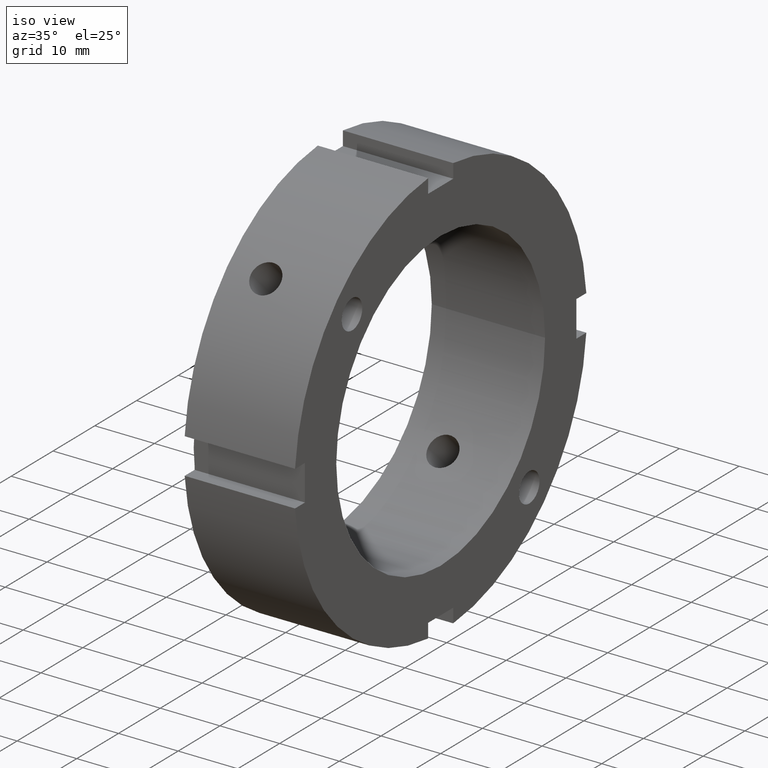
[diagram: clean part render]
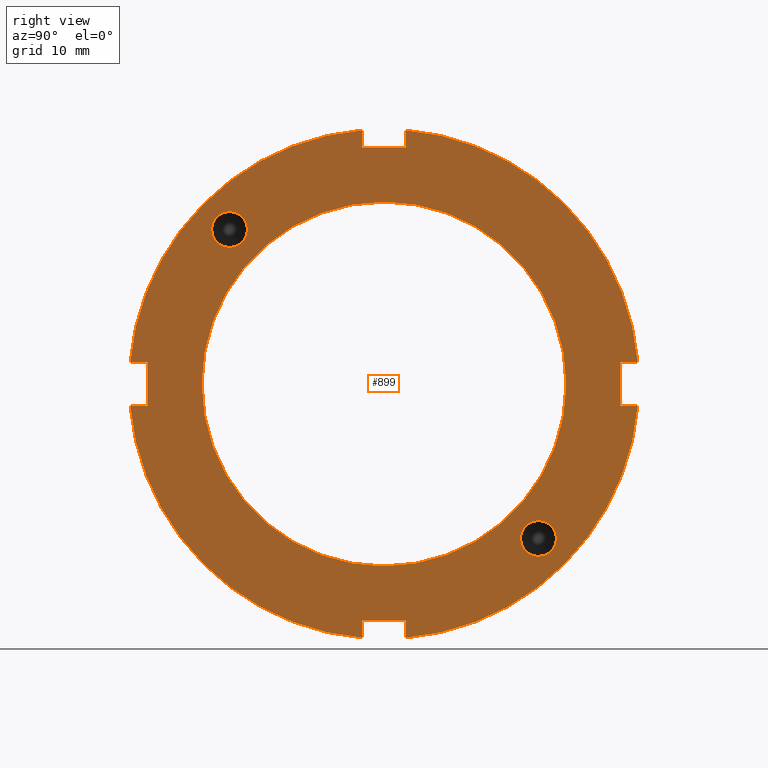
[diagram: tour spotlight — one face highlighted and labeled with its STEP entity id]
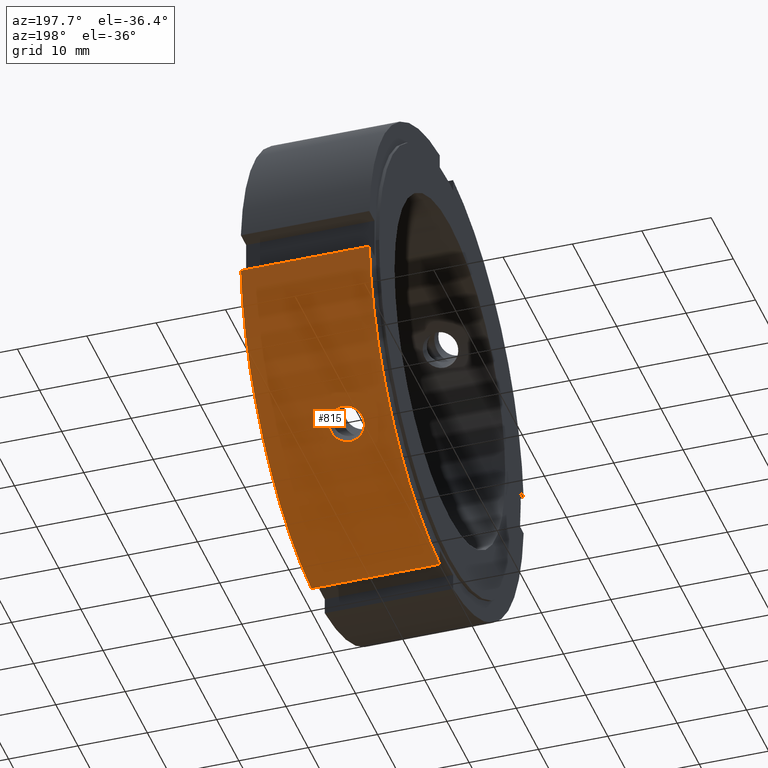
[diagram: tour spotlight — one face highlighted and labeled with its STEP entity id]
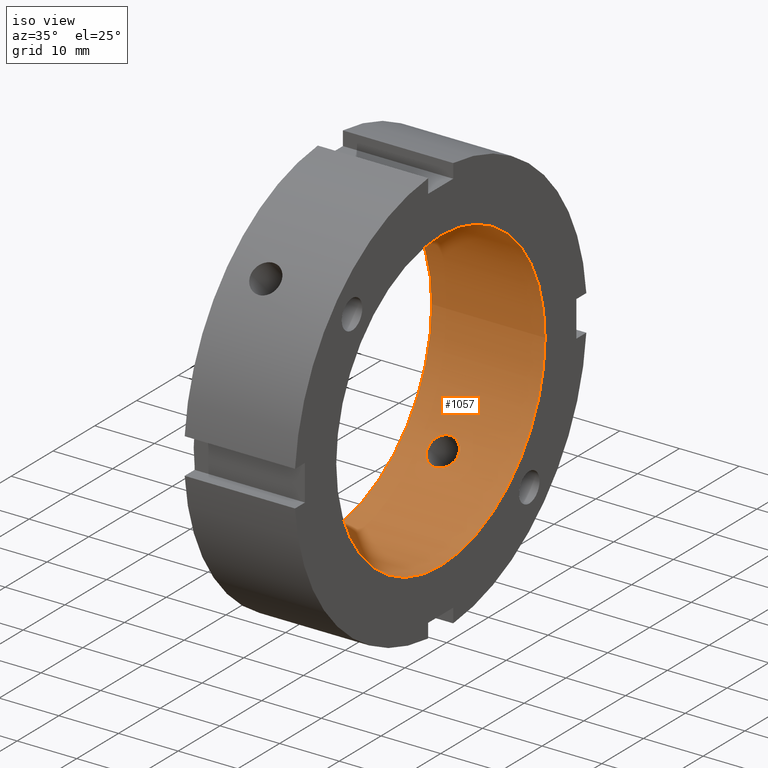
[diagram: tour spotlight — one face highlighted and labeled with its STEP entity id]
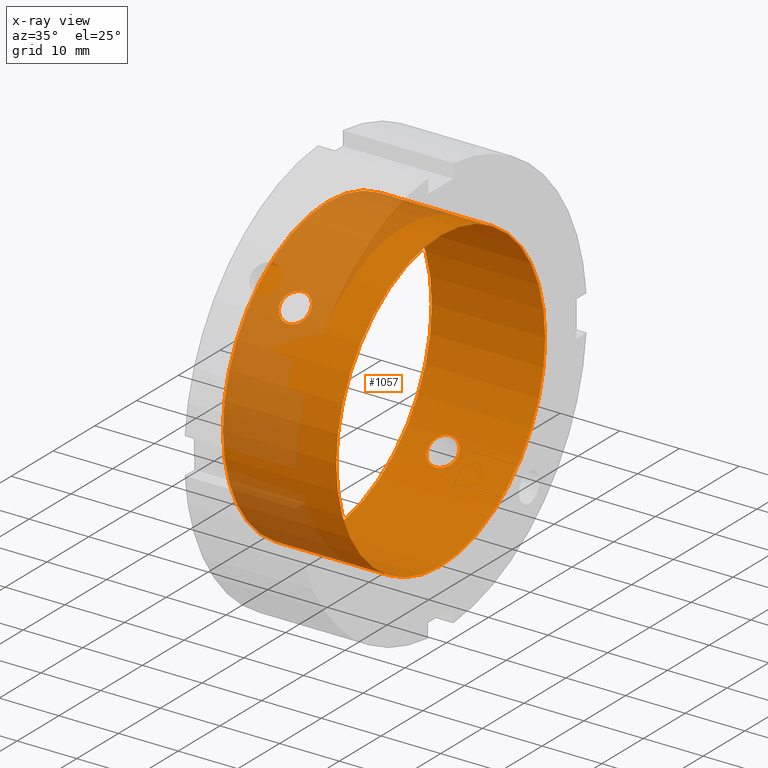
[diagram: x-ray of the same camera — body ghosted, this tour face saturated]
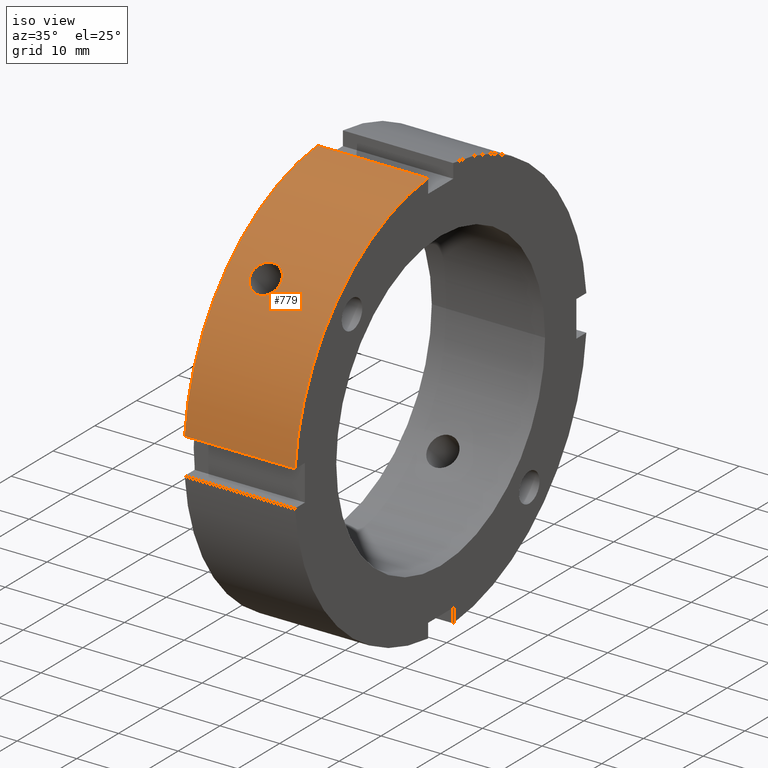
[diagram: tour spotlight — one face highlighted and labeled with its STEP entity id]
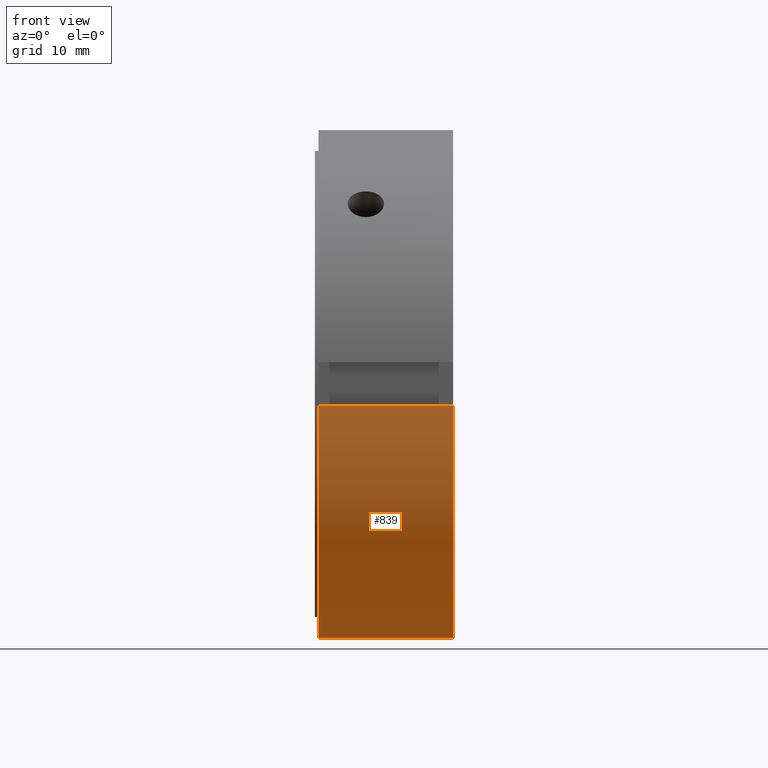
[diagram: tour spotlight — one face highlighted and labeled with its STEP entity id]
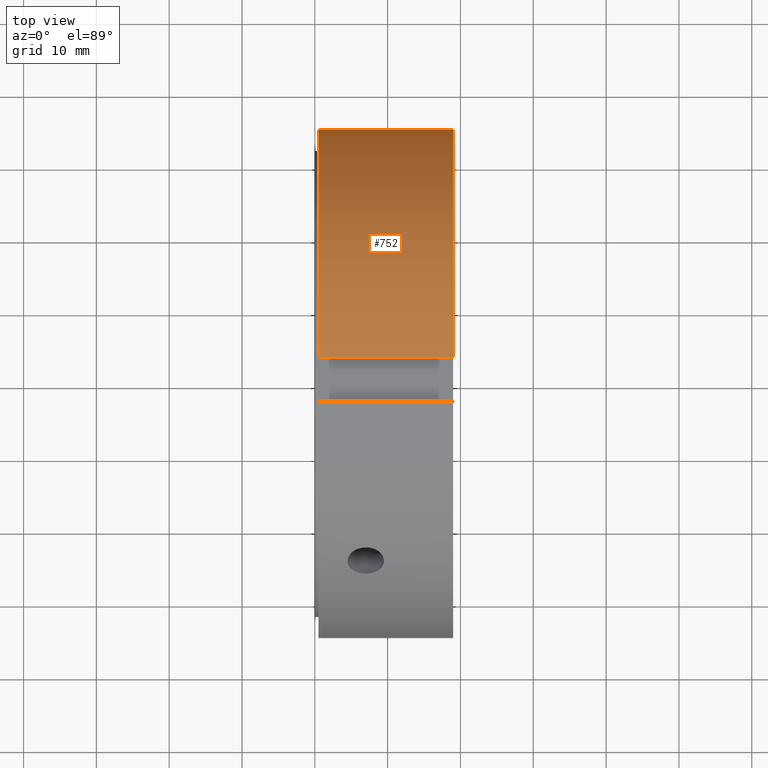
[diagram: tour spotlight — one face highlighted and labeled with its STEP entity id]
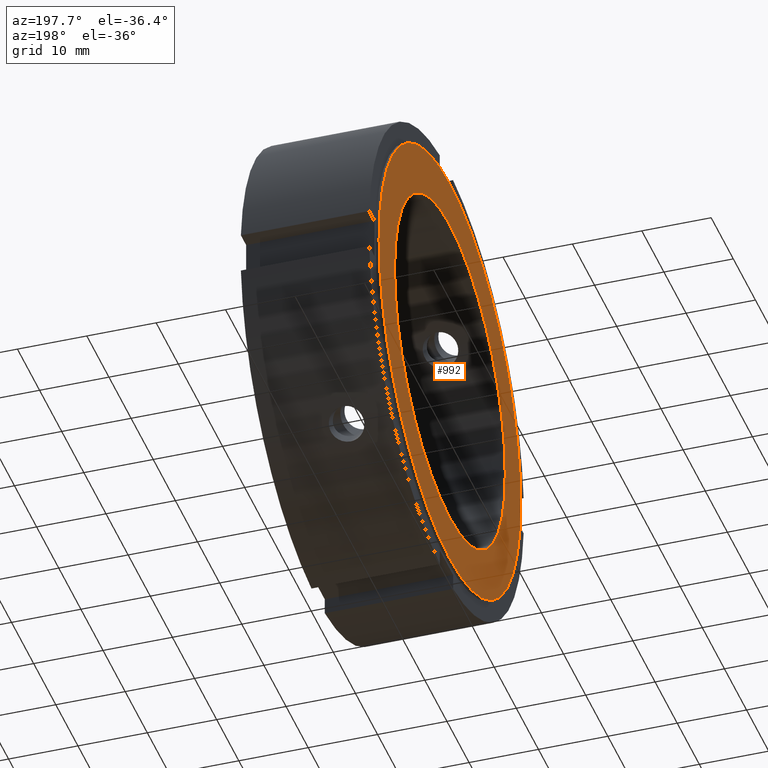
[diagram: tour spotlight — one face highlighted and labeled with its STEP entity id]
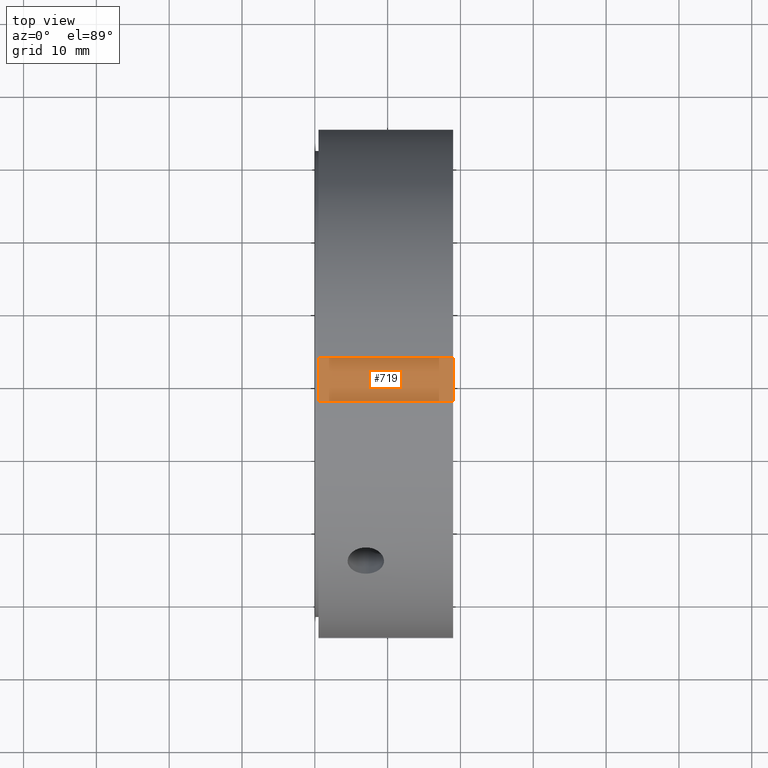
[diagram: tour spotlight — one face highlighted and labeled with its STEP entity id]
A machine part: a face-by-face anatomy tour. The part has 25 B-rep faces; the first image is the clean iso view, then the 8 largest visible faces are spotlighted one at a time (largest first), each with its STEP entity span.

Face 1 — right view, entity #899. In plain terms, the highlighted planar face has unit normal (1, 0, 0).
Definition (entity closure, byte-faithful):
#73=CARTESIAN_POINT('',(18.999999999999989,-23.67170343559642,21.213203435596434));
#74=VERTEX_POINT('',#73);
#75=CARTESIAN_POINT('',(18.999999999999989,-21.213203435596419,21.213203435596434));
#76=DIRECTION('',(-1.0,0.0,0.0));
#77=DIRECTION('',(0.0,-1.0,0.0));
#78=AXIS2_PLACEMENT_3D('',#75,#76,#77);
#79=CIRCLE('',#78,2.4585);
#80=EDGE_CURVE('',#74,#74,#79,.T.);
#311=CARTESIAN_POINT('',(18.999999999999989,21.213203435596427,-23.671703435596424));
#312=VERTEX_POINT('',#311);
#313=CARTESIAN_POINT('',(18.999999999999989,21.213203435596427,-21.213203435596423));
#314=DIRECTION('',(-1.0,0.0,0.0));
#315=DIRECTION('',(0.0,0.0,-1.0));
#316=AXIS2_PLACEMENT_3D('',#313,#314,#315);
#317=CIRCLE('',#316,2.4585);
#318=EDGE_CURVE('',#312,#312,#317,.T.);
#429=CARTESIAN_POINT('',(18.999999999999989,-3.000000000000004,-32.5));
#430=VERTEX_POINT('',#429);
#437=CARTESIAN_POINT('',(18.999999999999989,-3.000000000000005,-34.871191548325385));
#438=VERTEX_POINT('',#437);
#439=CARTESIAN_POINT('',(18.999999999999989,-3.000000000000004,-34.871191548325385));
#440=DIRECTION('',(0.0,0.0,1.0));
#441=VECTOR('',#440,2.371191548325385);
#442=LINE('',#439,#441);
#443=EDGE_CURVE('',#438,#430,#442,.T.);
#469=CARTESIAN_POINT('',(18.999999999999989,2.999999999999993,-34.871191548325385));
#470=VERTEX_POINT('',#469);
#477=CARTESIAN_POINT('',(18.999999999999989,2.999999999999992,-32.5));
#478=VERTEX_POINT('',#477);
#479=CARTESIAN_POINT('',(18.999999999999989,2.999999999999994,-32.5));
#480=DIRECTION('',(0.0,0.0,-1.0));
#481=VECTOR('',#480,2.371191548325385);
#482=LINE('',#479,#481);
#483=EDGE_CURVE('',#478,#470,#482,.T.);
#506=CARTESIAN_POINT('',(18.999999999999989,-3.000000000000007,-32.499999999999993));
#507=DIRECTION('',(0.0,1.0,0.0));
#508=VECTOR('',#507,5.999999999999996);
#509=LINE('',#506,#508);
#510=EDGE_CURVE('',#430,#478,#509,.T.);
#531=CARTESIAN_POINT('',(18.999999999999989,-32.5,3.000000000000003));
#532=VERTEX_POINT('',#531);
#539=CARTESIAN_POINT('',(18.999999999999989,-34.871191548325385,3.000000000000003));
#540=VERTEX_POINT('',#539);
#541=CARTESIAN_POINT('',(18.999999999999989,-34.871191548325385,3.000000000000003));
#542=DIRECTION('',(0.0,1.0,0.0));
#543=VECTOR('',#542,2.371191548325385);
#544=LINE('',#541,#543);
#545=EDGE_CURVE('',#540,#532,#544,.T.);
#571=CARTESIAN_POINT('',(18.999999999999989,-34.871191548325385,-2.999999999999995));
#572=VERTEX_POINT('',#571);
#579=CARTESIAN_POINT('',(18.999999999999989,-32.5,-2.999999999999994));
#580=VERTEX_POINT('',#579);
#581=CARTESIAN_POINT('',(18.999999999999989,-32.5,-2.999999999999994));
#582=DIRECTION('',(0.0,-1.0,0.0));
#583=VECTOR('',#582,2.371191548325385);
#584=LINE('',#581,#583);
#585=EDGE_CURVE('',#580,#572,#584,.T.);
#608=CARTESIAN_POINT('',(18.999999999999989,-32.5,3.000000000000003));
#609=DIRECTION('',(0.0,0.0,-1.0));
#610=VECTOR('',#609,5.999999999999996);
#611=LINE('',#608,#610);
#612=EDGE_CURVE('',#532,#580,#611,.T.);
#633=CARTESIAN_POINT('',(18.999999999999989,3.0,32.5));
#634=VERTEX_POINT('',#633);
#641=CARTESIAN_POINT('',(18.999999999999989,3.000000000000001,34.871191548325385));
#642=VERTEX_POINT('',#641);
#643=CARTESIAN_POINT('',(18.999999999999989,2.999999999999999,34.871191548325385));
#644=DIRECTION('',(0.0,0.0,-1.0));
#645=VECTOR('',#644,2.371191548325385);
#646=LINE('',#643,#645);
#647=EDGE_CURVE('',#642,#634,#646,.T.);
#673=CARTESIAN_POINT('',(18.999999999999989,-2.999999999999997,34.871191548325385));
#674=VERTEX_POINT('',#673);
#681=CARTESIAN_POINT('',(18.999999999999989,-2.999999999999996,32.5));
#682=VERTEX_POINT('',#681);
#683=CARTESIAN_POINT('',(18.999999999999989,-2.999999999999998,32.5));
#684=DIRECTION('',(0.0,0.0,1.0));
#685=VECTOR('',#684,2.371191548325385);
#686=LINE('',#683,#685);
#687=EDGE_CURVE('',#682,#674,#686,.T.);
#710=CARTESIAN_POINT('',(18.999999999999989,3.0,32.5));
#711=DIRECTION('',(0.0,-1.0,0.0));
#712=VECTOR('',#711,5.999999999999996);
#713=LINE('',#710,#712);
#714=EDGE_CURVE('',#634,#682,#713,.T.);
#726=CARTESIAN_POINT('',(18.999999999999989,34.871191548325385,2.999999999999999));
#727=VERTEX_POINT('',#726);
#728=CARTESIAN_POINT('',(18.999999999999989,0.0,0.0));
#729=DIRECTION('',(1.0,0.0,0.0));
#730=DIRECTION('',(0.0,1.0,0.0));
#731=AXIS2_PLACEMENT_3D('',#728,#729,#730);
#732=CIRCLE('',#731,35.0);
#733=EDGE_CURVE('',#727,#642,#732,.T.);
#759=CARTESIAN_POINT('',(18.999999999999989,0.0,0.0));
#760=DIRECTION('',(1.0,0.0,0.0));
#761=DIRECTION('',(0.0,1.0,0.0));
#762=AXIS2_PLACEMENT_3D('',#759,#760,#761);
#763=CIRCLE('',#762,35.0);
#764=EDGE_CURVE('',#674,#540,#763,.T.);
#795=CARTESIAN_POINT('',(18.999999999999989,34.871191548325385,-2.999999999999999));
#796=VERTEX_POINT('',#795);
#803=CARTESIAN_POINT('',(18.999999999999989,0.0,0.0));
#804=DIRECTION('',(1.0,0.0,0.0));
#805=DIRECTION('',(0.0,1.0,0.0));
#806=AXIS2_PLACEMENT_3D('',#803,#804,#805);
#807=CIRCLE('',#806,35.0);
#808=EDGE_CURVE('',#470,#796,#807,.T.);
#822=CARTESIAN_POINT('',(18.999999999999989,0.0,0.0));
#823=DIRECTION('',(1.0,0.0,0.0));
#824=DIRECTION('',(0.0,1.0,0.0));
#825=AXIS2_PLACEMENT_3D('',#822,#823,#824);
#826=CIRCLE('',#825,35.0);
#827=EDGE_CURVE('',#572,#438,#826,.T.);
#840=CARTESIAN_POINT('',(18.999999999999989,30.0,0.0));
#841=DIRECTION('',(1.0,0.0,0.0));
#842=DIRECTION('',(0.0,0.0,-1.0));
#843=AXIS2_PLACEMENT_3D('',#840,#841,#842);
#844=PLANE('',#843);
#845=ORIENTED_EDGE('',*,*,#443,.T.);
#846=ORIENTED_EDGE('',*,*,#510,.T.);
#847=ORIENTED_EDGE('',*,*,#483,.T.);
#848=ORIENTED_EDGE('',*,*,#808,.T.);
#849=CARTESIAN_POINT('',(18.999999999999989,32.5,-2.999999999999998));
#850=VERTEX_POINT('',#849);
#851=CARTESIAN_POINT('',(18.999999999999989,34.871191548325385,-2.999999999999999));
#852=DIRECTION('',(0.0,-1.0,0.0));
#853=VECTOR('',#852,2.371191548325385);
#854=LINE('',#851,#853);
#855=EDGE_CURVE('',#796,#850,#854,.T.);
#856=ORIENTED_EDGE('',*,*,#855,.T.);
#857=CARTESIAN_POINT('',(18.999999999999989,32.5,2.999999999999998));
#858=VERTEX_POINT('',#857);
#859=CARTESIAN_POINT('',(18.999999999999989,32.5,-2.999999999999998));
#860=DIRECTION('',(0.0,0.0,1.0));
#861=VECTOR('',#860,5.999999999999996);
#862=LINE('',#859,#861);
#863=EDGE_CURVE('',#850,#858,#862,.T.);
#864=ORIENTED_EDGE('',*,*,#863,.T.);
#865=CARTESIAN_POINT('',(18.999999999999989,32.5,2.999999999999998));
#866=DIRECTION('',(0.0,1.0,0.0));
#867=VECTOR('',#866,2.371191548325385);
#868=LINE('',#865,#867);
#869=EDGE_CURVE('',#858,#727,#868,.T.);
#870=ORIENTED_EDGE('',*,*,#869,.T.);
#871=ORIENTED_EDGE('',*,*,#733,.T.);
#872=ORIENTED_EDGE('',*,*,#647,.T.);
#873=ORIENTED_EDGE('',*,*,#714,.T.);
#874=ORIENTED_EDGE('',*,*,#687,.T.);
#875=ORIENTED_EDGE('',*,*,#764,.T.);
#876=ORIENTED_EDGE('',*,*,#545,.T.);
#877=ORIENTED_EDGE('',*,*,#612,.T.);
#878=ORIENTED_EDGE('',*,*,#585,.T.);
#879=ORIENTED_EDGE('',*,*,#827,.T.);
#880=EDGE_LOOP('',(#845,#846,#847,#848,#856,#864,#870,#871,#872,#873,#874,#875,#876,#877,#878,#879));
#881=FACE_OUTER_BOUND('',#880,.T.);
#882=ORIENTED_EDGE('',*,*,#80,.T.);
#883=EDGE_LOOP('',(#882));
#884=FACE_BOUND('',#883,.T.);
#885=ORIENTED_EDGE('',*,*,#318,.T.);
#886=EDGE_LOOP('',(#885));
#887=FACE_BOUND('',#886,.T.);
#888=CARTESIAN_POINT('',(18.999999999999993,25.0,0.0));
#889=VERTEX_POINT('',#888);
#890=CARTESIAN_POINT('',(18.999999999999993,0.0,0.0));
#891=DIRECTION('',(1.0,0.0,0.0));
#892=DIRECTION('',(0.0,1.0,0.0));
#893=AXIS2_PLACEMENT_3D('',#890,#891,#892);
#894=CIRCLE('',#893,25.0);
#895=EDGE_CURVE('',#889,#889,#894,.T.);
#896=ORIENTED_EDGE('',*,*,#895,.F.);
#897=EDGE_LOOP('',(#896));
#898=FACE_BOUND('',#897,.T.);
#899=ADVANCED_FACE('',(#881,#884,#887,#898),#844,.T.);

Face 2 — auxiliary view, entity #815. In plain terms, the highlighted cylindrical surface (partial cylindrical patch) has radius 35 mm, axis along (1, 0, 0).
Definition (entity closure, byte-faithful):
#328=CARTESIAN_POINT('',(6.999999999999991,22.917755119697997,-26.453289025630745));
#329=VERTEX_POINT('',#328);
#330=CARTESIAN_POINT('',(6.999999999999989,22.917755119697997,-26.453289025630745));
#331=CARTESIAN_POINT('',(7.314020449173404,22.917755119697997,-26.453289025630745));
#332=CARTESIAN_POINT('',(7.648898687612285,22.965450920460022,-26.412201968584583));
#333=CARTESIAN_POINT('',(8.264815316581567,23.157814065553538,-26.243703939774612));
#334=CARTESIAN_POINT('',(8.545862801044811,23.302304709737236,-26.116124570931593));
#335=CARTESIAN_POINT('',(8.989670909176306,23.631994978088095,-25.818175393671751));
#336=CARTESIAN_POINT('',(9.182053611040693,23.839171838510499,-25.627890966716535));
#337=CARTESIAN_POINT('',(9.43722111251344,24.28660187215856,-25.204282946558859));
#338=CARTESIAN_POINT('',(9.499999999999991,24.526691548324095,-24.970783134734233));
#339=CARTESIAN_POINT('',(9.499999999999991,24.970783134734226,-24.526691548324095));
#340=CARTESIAN_POINT('',(9.437221112513438,25.204282946558848,-24.28660187215856));
#341=CARTESIAN_POINT('',(9.18205361104069,25.627890966716521,-23.839171838510502));
#342=CARTESIAN_POINT('',(8.989670909176306,25.818175393671744,-23.631994978088102));
#343=CARTESIAN_POINT('',(8.545862801044811,26.116124570931589,-23.302304709737239));
#344=CARTESIAN_POINT('',(8.264815316581567,26.243703939774605,-23.157814065553552));
#345=CARTESIAN_POINT('',(7.648898687612285,26.412201968584572,-22.965450920460029));
#346=CARTESIAN_POINT('',(7.314020449173405,26.453289025630738,-22.917755119698011));
#347=CARTESIAN_POINT('',(6.685979550826576,26.453289025630738,-22.917755119698011));
#348=CARTESIAN_POINT('',(6.351101312387696,26.412201968584572,-22.965450920460029));
#349=CARTESIAN_POINT('',(5.735184683418414,26.243703939774605,-23.157814065553552));
#350=CARTESIAN_POINT('',(5.454137198955172,26.116124570931589,-23.302304709737239));
#351=CARTESIAN_POINT('',(5.010329090823675,25.818175393671751,-23.631994978088102));
#352=CARTESIAN_POINT('',(4.817946388959292,25.627890966716521,-23.839171838510502));
#353=CARTESIAN_POINT('',(4.562778887486544,25.204282946558848,-24.28660187215856));
#354=CARTESIAN_POINT('',(4.499999999999991,24.97078313473423,-24.526691548324095));
#355=CARTESIAN_POINT('',(4.499999999999991,24.526691548324095,-24.970783134734233));
#356=CARTESIAN_POINT('',(4.562778887486542,24.28660187215856,-25.204282946558862));
#357=CARTESIAN_POINT('',(4.817946388959289,23.839171838510499,-25.627890966716535));
#358=CARTESIAN_POINT('',(5.010329090823675,23.631994978088095,-25.818175393671751));
#359=CARTESIAN_POINT('',(5.454137198955172,23.302304709737236,-26.116124570931593));
#360=CARTESIAN_POINT('',(5.735184683418416,23.157814065553538,-26.243703939774612));
#361=CARTESIAN_POINT('',(6.351101312387696,22.965450920460022,-26.412201968584583));
#362=CARTESIAN_POINT('',(6.685979550826576,22.917755119697997,-26.453289025630745));
#363=CARTESIAN_POINT('',(6.999999999999991,22.917755119697997,-26.453289025630745));
#364=B_SPLINE_CURVE_WITH_KNOTS('',3,(#330,#331,#332,#333,#334,#335,#336,#337,#338,#339,#340,#341,#342,#343,#344,#345,#346,#347,#348,#349,#350,#351,#352,#353,#354,#355,#356,#357,#358,#359,#360,#361,#362,#363),.UNSPECIFIED.,.T.,.U.,(4,2,2,2,2,2,2,2,2,2,2,2,2,2,2,2,4),(0.0,0.094206134752024,0.188412269504049,0.282618321169598,0.376824372835147,0.471030424500697,0.565236476166246,0.65944261091827,0.753648745670295,0.847854880422319,0.942061015174344,1.036267066839893,1.130473118505442,1.224679170170992,1.318885221836541,1.413091356588565,1.50729749134059),.UNSPECIFIED.);
#365=EDGE_CURVE('',#329,#329,#364,.T.);
#459=CARTESIAN_POINT('',(0.499999999999994,2.999999999999992,-34.871191548325385));
#460=VERTEX_POINT('',#459);
#469=CARTESIAN_POINT('',(18.999999999999989,2.999999999999993,-34.871191548325385));
#470=VERTEX_POINT('',#469);
#471=CARTESIAN_POINT('',(18.999999999999993,2.999999999999992,-34.871191548325385));
#472=DIRECTION('',(-1.0,0.0,0.0));
#473=VECTOR('',#472,18.5);
#474=LINE('',#471,#473);
#475=EDGE_CURVE('',#470,#460,#474,.T.);
#780=CARTESIAN_POINT('',(9.749999999999993,0.0,0.0));
#781=DIRECTION('',(1.0,0.0,0.0));
#782=DIRECTION('',(0.0,1.0,0.0));
#783=AXIS2_PLACEMENT_3D('',#780,#781,#782);
#784=CYLINDRICAL_SURFACE('',#783,35.0);
#785=ORIENTED_EDGE('',*,*,#475,.T.);
#786=CARTESIAN_POINT('',(0.499999999999994,34.871191548325385,-2.999999999999999));
#787=VERTEX_POINT('',#786);
#788=CARTESIAN_POINT('',(0.499999999999994,0.0,0.0));
#789=DIRECTION('',(1.0,0.0,0.0));
#790=DIRECTION('',(0.0,1.0,0.0));
#791=AXIS2_PLACEMENT_3D('',#788,#789,#790);
#792=CIRCLE('',#791,34.999999999999993);
#793=EDGE_CURVE('',#460,#787,#792,.T.);
#794=ORIENTED_EDGE('',*,*,#793,.T.);
#795=CARTESIAN_POINT('',(18.999999999999989,34.871191548325385,-2.999999999999999));
#796=VERTEX_POINT('',#795);
#797=CARTESIAN_POINT('',(0.499999999999995,34.871191548325385,-2.999999999999999));
#798=DIRECTION('',(1.0,0.0,0.0));
#799=VECTOR('',#798,18.5);
#800=LINE('',#797,#799);
#801=EDGE_CURVE('',#787,#796,#800,.T.);
#802=ORIENTED_EDGE('',*,*,#801,.T.);
#803=CARTESIAN_POINT('',(18.999999999999989,0.0,0.0));
#804=DIRECTION('',(1.0,0.0,0.0));
#805=DIRECTION('',(0.0,1.0,0.0));
#806=AXIS2_PLACEMENT_3D('',#803,#804,#805);
#807=CIRCLE('',#806,35.0);
#808=EDGE_CURVE('',#470,#796,#807,.T.);
#809=ORIENTED_EDGE('',*,*,#808,.F.);
#810=EDGE_LOOP('',(#785,#794,#802,#809));
#811=FACE_OUTER_BOUND('',#810,.T.);
#812=ORIENTED_EDGE('',*,*,#365,.T.);
#813=EDGE_LOOP('',(#812));
#814=FACE_BOUND('',#813,.T.);
#815=ADVANCED_FACE('',(#811,#814),#784,.T.);

Face 3 — iso view, entity #1057. An x-ray twin of the same camera follows (body ghosted, this face saturated) — the face is partly hidden behind the body. In plain terms, the highlighted cylindrical surface (bore or boss wall) has radius 25 mm, axis along (1, 0, 0).
Definition (entity closure, byte-faithful):
#199=CARTESIAN_POINT('',(6.999999999999991,-19.356826052304228,15.821292146371491));
#200=VERTEX_POINT('',#199);
#201=CARTESIAN_POINT('',(6.999999999999991,-19.356826052304225,15.821292146371498));
#202=CARTESIAN_POINT('',(7.314131518358572,-19.356826052304225,15.821292146371498));
#203=CARTESIAN_POINT('',(7.649057145595561,-19.317045281653897,15.870355491965265));
#204=CARTESIAN_POINT('',(8.264942876141339,-19.153334578612142,16.06755103627852));
#205=CARTESIAN_POINT('',(8.545920952312564,-19.029168650815485,16.215431027932663));
#206=CARTESIAN_POINT('',(8.989612198510145,-18.737671794442385,16.551408349438397));
#207=CARTESIAN_POINT('',(9.181978302160339,-18.550821169181116,16.761921198428496));
#208=CARTESIAN_POINT('',(9.437177996889441,-18.132006488581933,17.214102039008431));
#209=CARTESIAN_POINT('',(9.499999999999991,-17.899793300421422,17.455545758905956));
#210=CARTESIAN_POINT('',(9.499999999999991,-17.455545758905949,17.899793300421422));
#211=CARTESIAN_POINT('',(9.437177996889442,-17.214102039008424,18.132006488581936));
#212=CARTESIAN_POINT('',(9.181978302160342,-16.761921198428492,18.550821169181116));
#213=CARTESIAN_POINT('',(8.989612198510145,-16.551408349438397,18.737671794442388));
#214=CARTESIAN_POINT('',(8.545920952312567,-16.215431027932659,19.029168650815489));
#215=CARTESIAN_POINT('',(8.26494287614134,-16.067551036278513,19.153334578612149));
#216=CARTESIAN_POINT('',(7.649057145595563,-15.870355491965253,19.317045281653908));
#217=CARTESIAN_POINT('',(7.314131518358574,-15.821292146371492,19.356826052304228));
#218=CARTESIAN_POINT('',(6.685868481641409,-15.821292146371492,19.356826052304228));
#219=CARTESIAN_POINT('',(6.350942854404417,-15.870355491965253,19.317045281653908));
#220=CARTESIAN_POINT('',(5.73505712385864,-16.067551036278513,19.153334578612149));
#221=CARTESIAN_POINT('',(5.454079047687415,-16.215431027932659,19.029168650815489));
#222=CARTESIAN_POINT('',(5.010387801489836,-16.551408349438397,18.737671794442388));
#223=CARTESIAN_POINT('',(4.818021697839638,-16.761921198428492,18.55082116918112));
#224=CARTESIAN_POINT('',(4.562822003110538,-17.214102039008424,18.132006488581936));
#225=CARTESIAN_POINT('',(4.499999999999989,-17.455545758905949,17.899793300421422));
#226=CARTESIAN_POINT('',(4.499999999999992,-17.899793300421422,17.455545758905956));
#227=CARTESIAN_POINT('',(4.562822003110539,-18.132006488581933,17.214102039008431));
#228=CARTESIAN_POINT('',(4.818021697839641,-18.550821169181116,16.761921198428499));
#229=CARTESIAN_POINT('',(5.010387801489835,-18.737671794442385,16.551408349438397));
#230=CARTESIAN_POINT('',(5.454079047687416,-19.029168650815485,16.215431027932663));
#231=CARTESIAN_POINT('',(5.73505712385864,-19.153334578612142,16.067551036278516));
#232=CARTESIAN_POINT('',(6.350942854404419,-19.3170452816539,15.87035549196526));
#233=CARTESIAN_POINT('',(6.68586848164141,-19.356826052304225,15.821292146371498));
#234=CARTESIAN_POINT('',(6.999999999999991,-19.356826052304225,15.821292146371498));
#235=B_SPLINE_CURVE_WITH_KNOTS('',3,(#201,#202,#203,#204,#205,#206,#207,#208,#209,#210,#211,#212,#213,#214,#215,#216,#217,#218,#219,#220,#221,#222,#223,#224,#225,#226,#227,#228,#229,#230,#231,#232,#233,#234),.UNSPECIFIED.,.T.,.U.,(4,2,2,2,2,2,2,2,2,2,2,2,2,2,2,2,4),(0.0,0.094239455507574,0.188478911015149,0.282718045754461,0.376957180493773,0.471196315233085,0.565435449972397,0.659674905479972,0.753914360987546,0.848153816495121,0.942393272002695,1.036632406742007,1.13087154148132,1.225110676220632,1.319349810959944,1.413589266467518,1.507828721975093),.UNSPECIFIED.);
#236=EDGE_CURVE('',#200,#200,#235,.T.);
#372=CARTESIAN_POINT('',(6.999999999999991,15.821292146371487,-19.356826052304232));
#373=VERTEX_POINT('',#372);
#374=CARTESIAN_POINT('',(6.999999999999989,15.821292146371489,-19.356826052304232));
#375=CARTESIAN_POINT('',(6.685868481641407,15.821292146371489,-19.356826052304232));
#376=CARTESIAN_POINT('',(6.350942854404417,15.870355491965253,-19.317045281653908));
#377=CARTESIAN_POINT('',(5.73505712385864,16.067551036278513,-19.153334578612149));
#378=CARTESIAN_POINT('',(5.454079047687415,16.215431027932659,-19.029168650815489));
#379=CARTESIAN_POINT('',(5.010387801489836,16.551408349438397,-18.737671794442385));
#380=CARTESIAN_POINT('',(4.818021697839637,16.761921198428496,-18.550821169181116));
#381=CARTESIAN_POINT('',(4.562822003110537,17.214102039008424,-18.132006488581933));
#382=CARTESIAN_POINT('',(4.499999999999989,17.455545758905949,-17.899793300421422));
#383=CARTESIAN_POINT('',(4.499999999999992,17.899793300421422,-17.455545758905956));
#384=CARTESIAN_POINT('',(4.562822003110539,18.132006488581933,-17.214102039008431));
#385=CARTESIAN_POINT('',(4.818021697839642,18.550821169181116,-16.761921198428496));
#386=CARTESIAN_POINT('',(5.010387801489835,18.737671794442385,-16.551408349438397));
#387=CARTESIAN_POINT('',(5.454079047687416,19.029168650815485,-16.215431027932663));
#388=CARTESIAN_POINT('',(5.735057123858642,19.153334578612139,-16.06755103627852));
#389=CARTESIAN_POINT('',(6.35094285440442,19.317045281653897,-15.870355491965265));
#390=CARTESIAN_POINT('',(6.68586848164141,19.356826052304225,-15.821292146371498));
#391=CARTESIAN_POINT('',(7.314131518358574,19.356826052304225,-15.821292146371498));
#392=CARTESIAN_POINT('',(7.649057145595561,19.317045281653897,-15.870355491965265));
#393=CARTESIAN_POINT('',(8.264942876141339,19.153334578612142,-16.06755103627852));
#394=CARTESIAN_POINT('',(8.545920952312564,19.029168650815485,-16.215431027932663));
#395=CARTESIAN_POINT('',(8.989612198510145,18.737671794442385,-16.551408349438397));
#396=CARTESIAN_POINT('',(9.181978302160339,18.550821169181116,-16.761921198428496));
#397=CARTESIAN_POINT('',(9.437177996889441,18.132006488581933,-17.214102039008431));
#398=CARTESIAN_POINT('',(9.499999999999991,17.899793300421422,-17.455545758905956));
#399=CARTESIAN_POINT('',(9.499999999999991,17.455545758905949,-17.899793300421422));
#400=CARTESIAN_POINT('',(9.437177996889442,17.214102039008424,-18.132006488581936));
#401=CARTESIAN_POINT('',(9.181978302160346,16.761921198428492,-18.550821169181116));
#402=CARTESIAN_POINT('',(8.989612198510146,16.551408349438397,-18.737671794442388));
#403=CARTESIAN_POINT('',(8.545920952312567,16.215431027932659,-19.029168650815489));
#404=CARTESIAN_POINT('',(8.264942876141342,16.067551036278516,-19.153334578612149));
#405=CARTESIAN_POINT('',(7.649057145595565,15.870355491965256,-19.317045281653908));
#406=CARTESIAN_POINT('',(7.314131518358574,15.821292146371489,-19.356826052304232));
#407=CARTESIAN_POINT('',(6.999999999999991,15.821292146371489,-19.356826052304232));
#408=B_SPLINE_CURVE_WITH_KNOTS('',3,(#374,#375,#376,#377,#378,#379,#380,#381,#382,#383,#384,#385,#386,#387,#388,#389,#390,#391,#392,#393,#394,#395,#396,#397,#398,#399,#400,#401,#402,#403,#404,#405,#406,#407),.UNSPECIFIED.,.T.,.U.,(4,2,2,2,2,2,2,2,2,2,2,2,2,2,2,2,4),(0.0,0.094239455507575,0.188478911015149,0.282718045754461,0.376957180493773,0.471196315233085,0.565435449972398,0.659674905479972,0.753914360987546,0.848153816495121,0.942393272002695,1.036632406742007,1.130871541481319,1.225110676220631,1.319349810959944,1.413589266467518,1.507828721975093),.UNSPECIFIED.);
#409=EDGE_CURVE('',#373,#373,#408,.T.);
#888=CARTESIAN_POINT('',(18.999999999999993,25.0,0.0));
#889=VERTEX_POINT('',#888);
#890=CARTESIAN_POINT('',(18.999999999999993,0.0,0.0));
#891=DIRECTION('',(1.0,0.0,0.0));
#892=DIRECTION('',(0.0,1.0,0.0));
#893=AXIS2_PLACEMENT_3D('',#890,#891,#892);
#894=CIRCLE('',#893,25.0);
#895=EDGE_CURVE('',#889,#889,#894,.T.);
#981=CARTESIAN_POINT('',(-6.760390E-015,25.0,0.0));
#982=VERTEX_POINT('',#981);
#983=CARTESIAN_POINT('',(-6.761085E-015,0.0,0.0));
#984=DIRECTION('',(1.0,0.0,0.0));
#985=DIRECTION('',(0.0,1.0,0.0));
#986=AXIS2_PLACEMENT_3D('',#983,#984,#985);
#987=CIRCLE('',#986,25.0);
#988=EDGE_CURVE('',#982,#982,#987,.T.);
#1040=CARTESIAN_POINT('',(9.499999999999993,0.0,0.0));
#1041=DIRECTION('',(1.0,0.0,0.0));
#1042=DIRECTION('',(0.0,1.0,0.0));
#1043=AXIS2_PLACEMENT_3D('',#1040,#1041,#1042);
#1044=CYLINDRICAL_SURFACE('',#1043,25.0);
#1045=ORIENTED_EDGE('',*,*,#988,.F.);
#1046=EDGE_LOOP('',(#1045));
#1047=FACE_OUTER_BOUND('',#1046,.T.);
#1048=ORIENTED_EDGE('',*,*,#236,.T.);
#1049=EDGE_LOOP('',(#1048));
#1050=FACE_BOUND('',#1049,.T.);
#1051=ORIENTED_EDGE('',*,*,#409,.T.);
#1052=EDGE_LOOP('',(#1051));
#1053=FACE_BOUND('',#1052,.T.);
#1054=ORIENTED_EDGE('',*,*,#895,.T.);
#1055=EDGE_LOOP('',(#1054));
#1056=FACE_BOUND('',#1055,.T.);
#1057=ADVANCED_FACE('',(#1047,#1050,#1053,#1056),#1044,.F.);

Face 4 — iso view, entity #779. In plain terms, the highlighted cylindrical surface (partial cylindrical patch) has radius 35 mm, axis along (1, 0, 0).
Definition (entity closure, byte-faithful):
#155=CARTESIAN_POINT('',(6.999999999999991,-26.453289025630742,22.917755119698));
#156=VERTEX_POINT('',#155);
#157=CARTESIAN_POINT('',(6.999999999999992,-26.453289025630738,22.917755119698011));
#158=CARTESIAN_POINT('',(6.685979550826577,-26.453289025630738,22.917755119698011));
#159=CARTESIAN_POINT('',(6.351101312387696,-26.412201968584572,22.965450920460029));
#160=CARTESIAN_POINT('',(5.735184683418414,-26.243703939774605,23.157814065553552));
#161=CARTESIAN_POINT('',(5.454137198955172,-26.116124570931589,23.302304709737239));
#162=CARTESIAN_POINT('',(5.010329090823675,-25.818175393671751,23.631994978088102));
#163=CARTESIAN_POINT('',(4.817946388959292,-25.627890966716521,23.839171838510502));
#164=CARTESIAN_POINT('',(4.562778887486544,-25.204282946558848,24.28660187215856));
#165=CARTESIAN_POINT('',(4.499999999999991,-24.97078313473423,24.526691548324095));
#166=CARTESIAN_POINT('',(4.499999999999991,-24.526691548324095,24.970783134734233));
#167=CARTESIAN_POINT('',(4.562778887486539,-24.28660187215857,25.204282946558855));
#168=CARTESIAN_POINT('',(4.817946388959284,-23.839171838510502,25.627890966716524));
#169=CARTESIAN_POINT('',(5.010329090823675,-23.631994978088095,25.818175393671751));
#170=CARTESIAN_POINT('',(5.454137198955172,-23.302304709737236,26.116124570931593));
#171=CARTESIAN_POINT('',(5.735184683418416,-23.157814065553538,26.243703939774612));
#172=CARTESIAN_POINT('',(6.351101312387696,-22.965450920460022,26.412201968584583));
#173=CARTESIAN_POINT('',(6.685979550826576,-22.917755119698008,26.453289025630742));
#174=CARTESIAN_POINT('',(7.314020449173405,-22.917755119698008,26.453289025630742));
#175=CARTESIAN_POINT('',(7.648898687612285,-22.965450920460022,26.412201968584583));
#176=CARTESIAN_POINT('',(8.264815316581567,-23.157814065553538,26.243703939774612));
#177=CARTESIAN_POINT('',(8.545862801044811,-23.302304709737236,26.116124570931593));
#178=CARTESIAN_POINT('',(8.989670909176306,-23.631994978088095,25.818175393671751));
#179=CARTESIAN_POINT('',(9.182053611040693,-23.839171838510499,25.627890966716535));
#180=CARTESIAN_POINT('',(9.43722111251344,-24.28660187215856,25.204282946558859));
#181=CARTESIAN_POINT('',(9.499999999999991,-24.526691548324095,24.970783134734233));
#182=CARTESIAN_POINT('',(9.499999999999991,-24.970783134734226,24.526691548324095));
#183=CARTESIAN_POINT('',(9.437221112513438,-25.204282946558848,24.28660187215856));
#184=CARTESIAN_POINT('',(9.18205361104069,-25.627890966716521,23.839171838510502));
#185=CARTESIAN_POINT('',(8.989670909176306,-25.818175393671744,23.631994978088102));
#186=CARTESIAN_POINT('',(8.545862801044811,-26.116124570931589,23.302304709737239));
#187=CARTESIAN_POINT('',(8.264815316581567,-26.243703939774605,23.157814065553545));
#188=CARTESIAN_POINT('',(7.648898687612285,-26.412201968584572,22.965450920460029));
#189=CARTESIAN_POINT('',(7.314020449173406,-26.453289025630738,22.917755119698011));
#190=CARTESIAN_POINT('',(6.999999999999991,-26.453289025630738,22.917755119698011));
#191=B_SPLINE_CURVE_WITH_KNOTS('',3,(#157,#158,#159,#160,#161,#162,#163,#164,#165,#166,#167,#168,#169,#170,#171,#172,#173,#174,#175,#176,#177,#178,#179,#180,#181,#182,#183,#184,#185,#186,#187,#188,#189,#190),.UNSPECIFIED.,.T.,.U.,(4,2,2,2,2,2,2,2,2,2,2,2,2,2,2,2,4),(0.0,0.094206134752024,0.188412269504049,0.282618321169598,0.376824372835147,0.471030424500697,0.565236476166246,0.65944261091827,0.753648745670295,0.847854880422319,0.942061015174344,1.036267066839893,1.130473118505442,1.224679170170991,1.318885221836541,1.413091356588565,1.507297491340589),.UNSPECIFIED.);
#192=EDGE_CURVE('',#156,#156,#191,.T.);
#523=CARTESIAN_POINT('',(0.499999999999994,-34.871191548325385,3.000000000000004));
#524=VERTEX_POINT('',#523);
#539=CARTESIAN_POINT('',(18.999999999999989,-34.871191548325385,3.000000000000003));
#540=VERTEX_POINT('',#539);
#547=CARTESIAN_POINT('',(0.499999999999995,-34.871191548325385,3.000000000000004));
#548=DIRECTION('',(1.0,0.0,0.0));
#549=VECTOR('',#548,18.5);
#550=LINE('',#547,#549);
#551=EDGE_CURVE('',#524,#540,#550,.T.);
#663=CARTESIAN_POINT('',(0.499999999999994,-2.999999999999996,34.871191548325385));
#664=VERTEX_POINT('',#663);
#673=CARTESIAN_POINT('',(18.999999999999989,-2.999999999999997,34.871191548325385));
#674=VERTEX_POINT('',#673);
#675=CARTESIAN_POINT('',(18.999999999999993,-2.999999999999996,34.871191548325385));
#676=DIRECTION('',(-1.0,0.0,0.0));
#677=VECTOR('',#676,18.5);
#678=LINE('',#675,#677);
#679=EDGE_CURVE('',#674,#664,#678,.T.);
#753=CARTESIAN_POINT('',(9.749999999999993,0.0,0.0));
#754=DIRECTION('',(1.0,0.0,0.0));
#755=DIRECTION('',(0.0,1.0,0.0));
#756=AXIS2_PLACEMENT_3D('',#753,#754,#755);
#757=CYLINDRICAL_SURFACE('',#756,35.0);
#758=ORIENTED_EDGE('',*,*,#551,.T.);
#759=CARTESIAN_POINT('',(18.999999999999989,0.0,0.0));
#760=DIRECTION('',(1.0,0.0,0.0));
#761=DIRECTION('',(0.0,1.0,0.0));
#762=AXIS2_PLACEMENT_3D('',#759,#760,#761);
#763=CIRCLE('',#762,35.0);
#764=EDGE_CURVE('',#674,#540,#763,.T.);
#765=ORIENTED_EDGE('',*,*,#764,.F.);
#766=ORIENTED_EDGE('',*,*,#679,.T.);
#767=CARTESIAN_POINT('',(0.499999999999994,0.0,0.0));
#768=DIRECTION('',(1.0,0.0,0.0));
#769=DIRECTION('',(0.0,1.0,0.0));
#770=AXIS2_PLACEMENT_3D('',#767,#768,#769);
#771=CIRCLE('',#770,34.999999999999993);
#772=EDGE_CURVE('',#664,#524,#771,.T.);
#773=ORIENTED_EDGE('',*,*,#772,.T.);
#774=EDGE_LOOP('',(#758,#765,#766,#773));
#775=FACE_OUTER_BOUND('',#774,.T.);
#776=ORIENTED_EDGE('',*,*,#192,.T.);
#777=EDGE_LOOP('',(#776));
#778=FACE_BOUND('',#777,.T.);
#779=ADVANCED_FACE('',(#775,#778),#757,.T.);

Face 5 — front view, entity #839. In plain terms, the highlighted cylindrical surface (partial cylindrical patch) has radius 35 mm, axis along (1, 0, 0).
Definition (entity closure, byte-faithful):
#421=CARTESIAN_POINT('',(0.499999999999994,-3.000000000000006,-34.871191548325385));
#422=VERTEX_POINT('',#421);
#437=CARTESIAN_POINT('',(18.999999999999989,-3.000000000000005,-34.871191548325385));
#438=VERTEX_POINT('',#437);
#445=CARTESIAN_POINT('',(0.499999999999995,-3.000000000000005,-34.871191548325385));
#446=DIRECTION('',(1.0,0.0,0.0));
#447=VECTOR('',#446,18.5);
#448=LINE('',#445,#447);
#449=EDGE_CURVE('',#422,#438,#448,.T.);
#561=CARTESIAN_POINT('',(0.499999999999994,-34.871191548325385,-2.999999999999994));
#562=VERTEX_POINT('',#561);
#571=CARTESIAN_POINT('',(18.999999999999989,-34.871191548325385,-2.999999999999995));
#572=VERTEX_POINT('',#571);
#573=CARTESIAN_POINT('',(18.999999999999993,-34.871191548325385,-2.999999999999994));
#574=DIRECTION('',(-1.0,0.0,0.0));
#575=VECTOR('',#574,18.5);
#576=LINE('',#573,#575);
#577=EDGE_CURVE('',#572,#562,#576,.T.);
#816=CARTESIAN_POINT('',(9.749999999999993,0.0,0.0));
#817=DIRECTION('',(1.0,0.0,0.0));
#818=DIRECTION('',(0.0,1.0,0.0));
#819=AXIS2_PLACEMENT_3D('',#816,#817,#818);
#820=CYLINDRICAL_SURFACE('',#819,35.0);
#821=ORIENTED_EDGE('',*,*,#449,.T.);
#822=CARTESIAN_POINT('',(18.999999999999989,0.0,0.0));
#823=DIRECTION('',(1.0,0.0,0.0));
#824=DIRECTION('',(0.0,1.0,0.0));
#825=AXIS2_PLACEMENT_3D('',#822,#823,#824);
#826=CIRCLE('',#825,35.0);
#827=EDGE_CURVE('',#572,#438,#826,.T.);
#828=ORIENTED_EDGE('',*,*,#827,.F.);
#829=ORIENTED_EDGE('',*,*,#577,.T.);
#830=CARTESIAN_POINT('',(0.499999999999994,0.0,0.0));
#831=DIRECTION('',(1.0,0.0,0.0));
#832=DIRECTION('',(0.0,1.0,0.0));
#833=AXIS2_PLACEMENT_3D('',#830,#831,#832);
#834=CIRCLE('',#833,34.999999999999993);
#835=EDGE_CURVE('',#562,#422,#834,.T.);
#836=ORIENTED_EDGE('',*,*,#835,.T.);
#837=EDGE_LOOP('',(#821,#828,#829,#836));
#838=FACE_OUTER_BOUND('',#837,.T.);
#839=ADVANCED_FACE('',(#838),#820,.T.);

Face 6 — top view, entity #752. In plain terms, the highlighted cylindrical surface (partial cylindrical patch) has radius 35 mm, axis along (1, 0, 0).
Definition (entity closure, byte-faithful):
#625=CARTESIAN_POINT('',(0.499999999999994,3.000000000000002,34.871191548325385));
#626=VERTEX_POINT('',#625);
#641=CARTESIAN_POINT('',(18.999999999999989,3.000000000000001,34.871191548325385));
#642=VERTEX_POINT('',#641);
#649=CARTESIAN_POINT('',(0.499999999999995,3.000000000000002,34.871191548325385));
#650=DIRECTION('',(1.0,0.0,0.0));
#651=VECTOR('',#650,18.5);
#652=LINE('',#649,#651);
#653=EDGE_CURVE('',#626,#642,#652,.T.);
#720=CARTESIAN_POINT('',(9.749999999999993,0.0,0.0));
#721=DIRECTION('',(1.0,0.0,0.0));
#722=DIRECTION('',(0.0,1.0,0.0));
#723=AXIS2_PLACEMENT_3D('',#720,#721,#722);
#724=CYLINDRICAL_SURFACE('',#723,35.0);
#725=ORIENTED_EDGE('',*,*,#653,.T.);
#726=CARTESIAN_POINT('',(18.999999999999989,34.871191548325385,2.999999999999999));
#727=VERTEX_POINT('',#726);
#728=CARTESIAN_POINT('',(18.999999999999989,0.0,0.0));
#729=DIRECTION('',(1.0,0.0,0.0));
#730=DIRECTION('',(0.0,1.0,0.0));
#731=AXIS2_PLACEMENT_3D('',#728,#729,#730);
#732=CIRCLE('',#731,35.0);
#733=EDGE_CURVE('',#727,#642,#732,.T.);
#734=ORIENTED_EDGE('',*,*,#733,.F.);
#735=CARTESIAN_POINT('',(0.499999999999994,34.871191548325385,2.999999999999999));
#736=VERTEX_POINT('',#735);
#737=CARTESIAN_POINT('',(18.999999999999993,34.871191548325385,2.999999999999999));
#738=DIRECTION('',(-1.0,0.0,0.0));
#739=VECTOR('',#738,18.5);
#740=LINE('',#737,#739);
#741=EDGE_CURVE('',#727,#736,#740,.T.);
#742=ORIENTED_EDGE('',*,*,#741,.T.);
#743=CARTESIAN_POINT('',(0.499999999999994,0.0,0.0));
#744=DIRECTION('',(1.0,0.0,0.0));
#745=DIRECTION('',(0.0,1.0,0.0));
#746=AXIS2_PLACEMENT_3D('',#743,#744,#745);
#747=CIRCLE('',#746,34.999999999999993);
#748=EDGE_CURVE('',#736,#626,#747,.T.);
#749=ORIENTED_EDGE('',*,*,#748,.T.);
#750=EDGE_LOOP('',(#725,#734,#742,#749));
#751=FACE_OUTER_BOUND('',#750,.T.);
#752=ADVANCED_FACE('',(#751),#724,.T.);

Face 7 — auxiliary view, entity #992. In plain terms, the highlighted planar face has unit normal (-1, 0, 0).
Definition (entity closure, byte-faithful):
#965=CARTESIAN_POINT('',(-7.821087E-015,28.499999999999996,0.0));
#966=DIRECTION('',(-1.0,0.0,0.0));
#967=DIRECTION('',(0.0,0.0,1.0));
#968=AXIS2_PLACEMENT_3D('',#965,#966,#967);
#969=PLANE('',#968);
#970=CARTESIAN_POINT('',(-8.881784E-015,31.999999999999996,0.0));
#971=VERTEX_POINT('',#970);
#972=CARTESIAN_POINT('',(-8.881784E-015,0.0,0.0));
#973=DIRECTION('',(1.0,0.0,0.0));
#974=DIRECTION('',(0.0,1.0,0.0));
#975=AXIS2_PLACEMENT_3D('',#972,#973,#974);
#976=CIRCLE('',#975,31.999999999999996);
#977=EDGE_CURVE('',#971,#971,#976,.T.);
#978=ORIENTED_EDGE('',*,*,#977,.F.);
#979=EDGE_LOOP('',(#978));
#980=FACE_OUTER_BOUND('',#979,.T.);
#981=CARTESIAN_POINT('',(-6.760390E-015,25.0,0.0));
#982=VERTEX_POINT('',#981);
#983=CARTESIAN_POINT('',(-6.761085E-015,0.0,0.0));
#984=DIRECTION('',(1.0,0.0,0.0));
#985=DIRECTION('',(0.0,1.0,0.0));
#986=AXIS2_PLACEMENT_3D('',#983,#984,#985);
#987=CIRCLE('',#986,25.0);
#988=EDGE_CURVE('',#982,#982,#987,.T.);
#989=ORIENTED_EDGE('',*,*,#988,.T.);
#990=EDGE_LOOP('',(#989));
#991=FACE_BOUND('',#990,.T.);
#992=ADVANCED_FACE('',(#980,#991),#969,.T.);

Face 8 — top view, entity #719. In plain terms, the highlighted planar face has unit normal (0, 0, -1).
Definition (entity closure, byte-faithful):
#623=CARTESIAN_POINT('',(0.499999999999994,3.0,32.5));
#624=VERTEX_POINT('',#623);
#633=CARTESIAN_POINT('',(18.999999999999989,3.0,32.5));
#634=VERTEX_POINT('',#633);
#635=CARTESIAN_POINT('',(18.999999999999989,3.0,32.5));
#636=DIRECTION('',(-1.0,0.0,0.0));
#637=VECTOR('',#636,18.499999999999996);
#638=LINE('',#635,#637);
#639=EDGE_CURVE('',#634,#624,#638,.T.);
#665=CARTESIAN_POINT('',(0.499999999999994,-2.999999999999996,32.5));
#666=VERTEX_POINT('',#665);
#681=CARTESIAN_POINT('',(18.999999999999989,-2.999999999999996,32.5));
#682=VERTEX_POINT('',#681);
#689=CARTESIAN_POINT('',(18.999999999999989,-2.999999999999996,32.5));
#690=DIRECTION('',(-1.0,0.0,0.0));
#691=VECTOR('',#690,18.499999999999996);
#692=LINE('',#689,#691);
#693=EDGE_CURVE('',#682,#666,#692,.T.);
#698=CARTESIAN_POINT('',(18.999999999999989,-2.999999999999996,32.5));
#699=DIRECTION('',(0.0,0.0,-1.0));
#700=DIRECTION('',(0.0,1.0,0.0));
#701=AXIS2_PLACEMENT_3D('',#698,#699,#700);
#702=PLANE('',#701);
#703=CARTESIAN_POINT('',(0.499999999999994,-2.999999999999996,32.5));
#704=DIRECTION('',(0.0,1.0,0.0));
#705=VECTOR('',#704,5.999999999999998);
#706=LINE('',#703,#705);
#707=EDGE_CURVE('',#666,#624,#706,.T.);
#708=ORIENTED_EDGE('',*,*,#707,.F.);
#709=ORIENTED_EDGE('',*,*,#693,.F.);
#710=CARTESIAN_POINT('',(18.999999999999989,3.0,32.5));
#711=DIRECTION('',(0.0,-1.0,0.0));
#712=VECTOR('',#711,5.999999999999996);
#713=LINE('',#710,#712);
#714=EDGE_CURVE('',#634,#682,#713,.T.);
#715=ORIENTED_EDGE('',*,*,#714,.F.);
#716=ORIENTED_EDGE('',*,*,#639,.T.);
#717=EDGE_LOOP('',(#708,#709,#715,#716));
#718=FACE_OUTER_BOUND('',#717,.T.);
#719=ADVANCED_FACE('',(#718),#702,.F.);